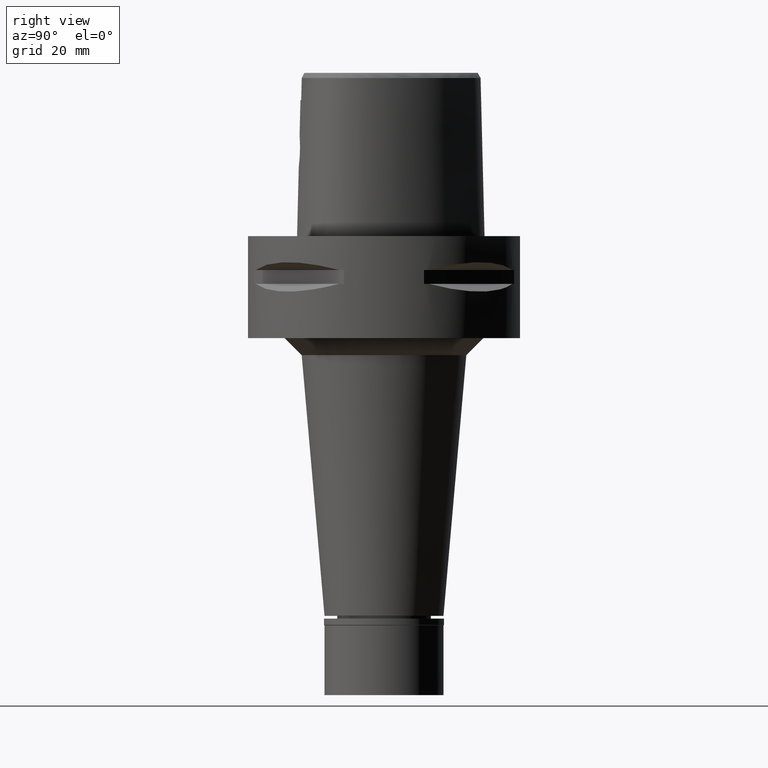
[diagram: clean part render]
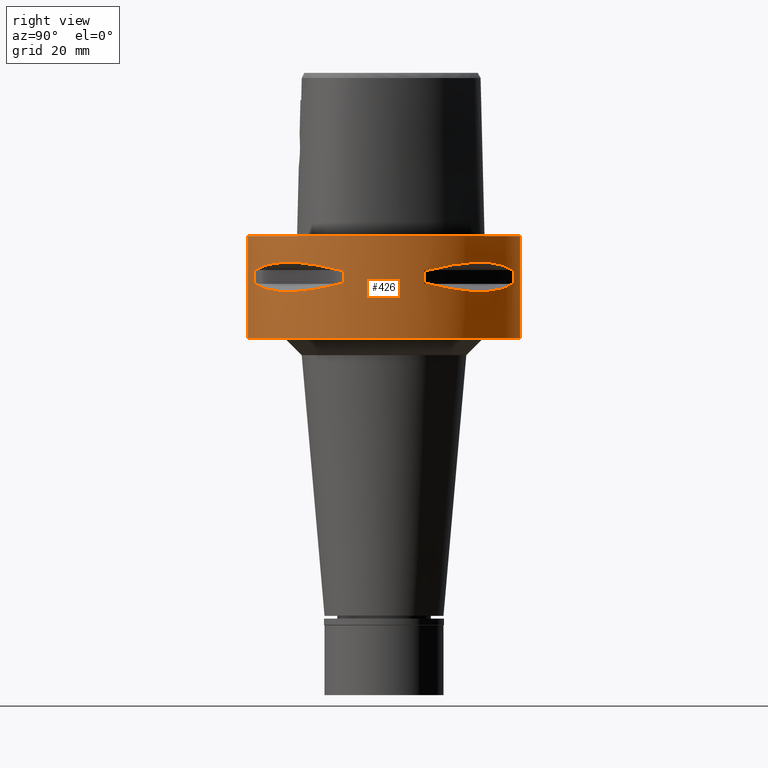
[diagram: same view with one face highlighted and labeled with its STEP entity id]
A machine part, right view. The second image highlights one B-rep face of the part: STEP entity #426.
In plain terms, the highlighted cylindrical surface (partial cylindrical patch) has radius 40 mm, axis along (0, 0, -1).
Its self-contained STEP definition (entity closure, byte-faithful):
#49 = CARTESIAN_POINT ( 'NONE',  ( 23.88355431037091137, -32.22577213857957901, -7.859897272571246596 ) ) ;
#60 = CARTESIAN_POINT ( 'NONE',  ( 22.55421454656803704, 33.03835700910301654, -15.93168855142971374 ) ) ;
#84 = VECTOR ( 'NONE', #145, 1000.000000000000000 ) ;
#109 = CARTESIAN_POINT ( 'NONE',  ( 16.14402792110260521, 36.72682052670324993, -14.82054974552761095 ) ) ;
#118 = CARTESIAN_POINT ( 'NONE',  ( 0.0000000000000000000, 1.303207891312999846E-14, -14.05000000000000071 ) ) ;
#132 = VERTEX_POINT ( 'NONE', #4249 ) ;
#145 = DIRECTION ( 'NONE',  ( 0.0000000000000000000, 0.0000000000000000000, -1.000000000000000000 ) ) ;
#200 = ORIENTED_EDGE ( 'NONE', *, *, #4687, .T. ) ;
#223 = CARTESIAN_POINT ( 'NONE',  ( 0.0000000000000000000, 1.303207891312999846E-14, -9.950000000000001066 ) ) ;
#246 = CIRCLE ( 'NONE', #4909, 39.99999999999997868 ) ;
#281 = CARTESIAN_POINT ( 'NONE',  ( 32.30995221950663421, -23.60097336453835837, -16.06165603927566821 ) ) ;
#287 = DIRECTION ( 'NONE',  ( 0.0000000000000000000, 0.0000000000000000000, 1.000000000000000000 ) ) ;
#299 = DIRECTION ( 'NONE',  ( 0.0000000000000000000, 0.0000000000000000000, -1.000000000000000000 ) ) ;
#304 = LINE ( 'NONE', #1458, #5023 ) ;
#310 = DIRECTION ( 'NONE',  ( 0.0000000000000000000, 0.0000000000000000000, -1.000000000000000000 ) ) ;
#331 = CARTESIAN_POINT ( 'NONE',  ( 0.0000000000000000000, 1.303207891312999846E-14, -9.950000000000001066 ) ) ;
#334 = DIRECTION ( 'NONE',  ( 0.9558028356769561196, 0.2940084000702865574, 0.0000000000000000000 ) ) ;
#364 = CARTESIAN_POINT ( 'NONE',  ( 36.74070924257181758, -16.10442380448733957, -9.189948522868267133 ) ) ;
#368 = VERTEX_POINT ( 'NONE', #1227 ) ;
#426 = ADVANCED_FACE ( 'NONE', ( #2798, #4756, #1199 ), #2775, .T. ) ;
#433 = LINE ( 'NONE', #3978, #2457 ) ;
#453 = CARTESIAN_POINT ( 'NONE',  ( 32.16767032371209467, 23.95303639237203797, -16.14729882780224202 ) ) ;
#459 = CARTESIAN_POINT ( 'NONE',  ( 0.0000000000000000000, 1.303207891312999846E-14, -9.950000000000001066 ) ) ;
#511 = CARTESIAN_POINT ( 'NONE',  ( 0.0000000000000000000, 1.303207891312999846E-14, -14.05000000000000071 ) ) ;
#547 = EDGE_CURVE ( 'NONE', #1777, #3102, #1117, .T. ) ;
#562 = CARTESIAN_POINT ( 'NONE',  ( 37.74622163926999718, 13.23717311056000057, -9.950000000002001244 ) ) ;
#617 = CARTESIAN_POINT ( 'NONE',  ( 35.39137327285502010, -18.89342208874845142, -15.39779115589221625 ) ) ;
#643 = CARTESIAN_POINT ( 'NONE',  ( 23.95303639238279914, -32.16767032370825063, -16.14729882780506287 ) ) ;
#647 = CARTESIAN_POINT ( 'NONE',  ( 0.0000000000000000000, 1.303207891312999846E-14, -9.950000000000001066 ) ) ;
#657 = LINE ( 'NONE', #3836, #952 ) ;
#673 = DIRECTION ( 'NONE',  ( 0.0000000000000000000, 0.0000000000000000000, 1.000000000000000000 ) ) ;
#684 = EDGE_CURVE ( 'NONE', #3268, #5112, #2777, .T. ) ;
#778 = CARTESIAN_POINT ( 'NONE',  ( 18.83173199174709467, -35.41596287855377767, -8.619939612211810598 ) ) ;
#795 = EDGE_CURVE ( 'NONE', #1552, #5105, #657, .T. ) ;
#799 = DIRECTION ( 'NONE',  ( 0.0000000000000000000, 0.0000000000000000000, -1.000000000000000000 ) ) ;
#830 = CARTESIAN_POINT ( 'NONE',  ( 16.10435486228985980, -36.74073341982089147, -9.189966798081965038 ) ) ;
#844 = CARTESIAN_POINT ( 'NONE',  ( 33.75216276490046852, 21.46607685731544990, -15.77886817953061005 ) ) ;
#877 = DIRECTION ( 'NONE',  ( 0.0000000000000000000, -1.000000000000000000, 0.0000000000000000000 ) ) ;
#897 = ORIENTED_EDGE ( 'NONE', *, *, #1636, .T. ) ;
#947 = CIRCLE ( 'NONE', #2159, 39.99999999999999289 ) ;
#948 = CARTESIAN_POINT ( 'NONE',  ( 22.02254759438460141, 33.39247868354773630, -15.85920599531294783 ) ) ;
#950 = ORIENTED_EDGE ( 'NONE', *, *, #1203, .F. ) ;
#952 = VECTOR ( 'NONE', #299, 1000.000000000000000 ) ;
#973 = ORIENTED_EDGE ( 'NONE', *, *, #5151, .F. ) ;
#994 = B_SPLINE_CURVE_WITH_KNOTS ( 'NONE', 3,
 ( #1245, #3308, #4020, #2816, #4900, #1344, #2075, #2918, #1680, #3654, #844, #453, #1705, #4433, #2872, #4509, #60, #948, #2438, #2051, #1654, #3287, #2100, #3239, #109, #2539 ),
 .UNSPECIFIED., .F., .F.,
 ( 4, 1, 1, 1, 1, 1, 1, 2, 2, 2, 1, 1, 1, 1, 1, 1, 2, 2, 4 ),
 ( 0.0000000000000000000, 0.1249999999999938660, 0.1874999999999906741, 0.2187499999999889255, 0.2343749999999879541, 0.2421874999999872879, 0.2460937499999869549, 0.2480468749999869271, 0.2499999999999869271, 0.4999999999999968914, 0.6250000000000018874, 0.6875000000000044409, 0.7187500000000057732, 0.7343750000000064393, 0.7421875000000067724, 0.7460937500000065503, 0.7480468750000062172, 0.7500000000000058842, 1.000000000000000000 ),
 .UNSPECIFIED. ) ;
#1013 = CARTESIAN_POINT ( 'NONE',  ( 13.23717311056000057, -37.74622163926999718, -14.05000000000000071 ) ) ;
#1022 = VERTEX_POINT ( 'NONE', #2769 ) ;
#1049 = VERTEX_POINT ( 'NONE', #3162 ) ;
#1060 = DIRECTION ( 'NONE',  ( 0.0000000000000000000, 0.0000000000000000000, -1.000000000000000000 ) ) ;
#1063 = CARTESIAN_POINT ( 'NONE',  ( 33.39247868354526361, -22.02254759438564591, -15.85920599531236164 ) ) ;
#1065 = VERTEX_POINT ( 'NONE', #3137 ) ;
#1092 = CARTESIAN_POINT ( 'NONE',  ( 33.03835700909839090, -22.55421454657001235, -15.93168855142863904 ) ) ;
#1100 = EDGE_LOOP ( 'NONE', ( #200, #1899, #2011, #950, #1571, #1794, #4390, #4657 ) ) ;
#1117 = CIRCLE ( 'NONE', #4021, 39.99999999999997868 ) ;
#1129 = CARTESIAN_POINT ( 'NONE',  ( 18.83182902082666743, 35.41591128510520292, -8.619912199373711559 ) ) ;
#1199 = FACE_BOUND ( 'NONE', #1100, .T. ) ;
#1203 = EDGE_CURVE ( 'NONE', #1022, #5112, #994, .T. ) ;
#1227 = CARTESIAN_POINT ( 'NONE',  ( 0.0000000000000000000, -40.00000000000000000, -30.00000000000000000 ) ) ;
#1238 = EDGE_LOOP ( 'NONE', ( #3600, #3661, #4398, #2301, #5030, #973, #2464, #1882 ) ) ;
#1245 = CARTESIAN_POINT ( 'NONE',  ( 37.74622163926999718, 13.23717311056000057, -14.05000000000000071 ) ) ;
#1255 = CARTESIAN_POINT ( 'NONE',  ( 37.74622163926999718, -13.23717311056000057, -9.950000000002001244 ) ) ;
#1275 = VERTEX_POINT ( 'NONE', #3623 ) ;
#1279 = EDGE_CURVE ( 'NONE', #3415, #1777, #4280, .T. ) ;
#1344 = CARTESIAN_POINT ( 'NONE',  ( 34.09685321779860345, 20.91613153242115075, -15.69507322892878953 ) ) ;
#1405 = CARTESIAN_POINT ( 'NONE',  ( 38.23211342708000160, 11.76033600280999991, -9.950000000000001066 ) ) ;
#1409 = CARTESIAN_POINT ( 'NONE',  ( 20.91613153241887701, -34.09685321779939926, -15.69507322892818557 ) ) ;
#1418 = VERTEX_POINT ( 'NONE', #562 ) ;
#1419 = EDGE_LOOP ( 'NONE', ( #2274, #4045, #897, #4772 ) ) ;
#1456 = CIRCLE ( 'NONE', #2941, 40.00000000000000000 ) ;
#1458 = CARTESIAN_POINT ( 'NONE',  ( 0.0000000000000000000, -40.00000000000000000, 0.0000000000000000000 ) ) ;
#1500 = AXIS2_PLACEMENT_3D ( 'NONE', #1848, #5076, #2008 ) ;
#1509 = B_SPLINE_CURVE_WITH_KNOTS ( 'NONE', 3,
 ( #3524, #1549, #1932, #3907, #2323, #3126, #5109, #1129, #4289, #2707 ),
 .UNSPECIFIED., .F., .F.,
 ( 4, 2, 2, 2, 4 ),
 ( 0.0000000000000000000, 0.2499999999999997780, 0.4999999999999995559, 0.7499999999999997780, 1.000000000000000000 ),
 .UNSPECIFIED. ) ;
#1549 = CARTESIAN_POINT ( 'NONE',  ( 36.74073341983645236, 16.10435486224558943, -9.189966798093662348 ) ) ;
#1552 = VERTEX_POINT ( 'NONE', #1405 ) ;
#1559 = CARTESIAN_POINT ( 'NONE',  ( 0.0000000000000000000, -40.00000000000000000, 0.0000000000000000000 ) ) ;
#1571 = ORIENTED_EDGE ( 'NONE', *, *, #2795, .T. ) ;
#1602 = VERTEX_POINT ( 'NONE', #2185 ) ;
#1636 = EDGE_CURVE ( 'NONE', #368, #1275, #1456, .T. ) ;
#1654 = CARTESIAN_POINT ( 'NONE',  ( 21.56243030661663695, 33.69065616467183588, -15.79309434609252705 ) ) ;
#1680 = CARTESIAN_POINT ( 'NONE',  ( 33.79139713908593023, 21.40429668490282467, -15.76966389594722528 ) ) ;
#1705 = CARTESIAN_POINT ( 'NONE',  ( 30.34851826270024944, 26.21995747455423853, -16.33009976521772799 ) ) ;
#1713 = EDGE_CURVE ( 'NONE', #3044, #368, #304, .T. ) ;
#1714 = DIRECTION ( 'NONE',  ( 0.0000000000000000000, 0.0000000000000000000, -1.000000000000000000 ) ) ;
#1751 = VERTEX_POINT ( 'NONE', #1812 ) ;
#1777 = VERTEX_POINT ( 'NONE', #3616 ) ;
#1794 = ORIENTED_EDGE ( 'NONE', *, *, #795, .F. ) ;
#1812 = CARTESIAN_POINT ( 'NONE',  ( 11.76033600280999991, 38.23211342708000160, -9.950000000000001066 ) ) ;
#1816 = CARTESIAN_POINT ( 'NONE',  ( 37.74622163926999718, -13.23717311056000057, -14.05000000000000071 ) ) ;
#1848 = CARTESIAN_POINT ( 'NONE',  ( 0.0000000000000000000, 1.303207891312999846E-14, 0.0000000000000000000 ) ) ;
#1850 = CARTESIAN_POINT ( 'NONE',  ( 11.76033600280999991, -38.23211342708000160, -9.950000000000001066 ) ) ;
#1859 = AXIS2_PLACEMENT_3D ( 'NONE', #4686, #310, #4606 ) ;
#1863 = EDGE_CURVE ( 'NONE', #1049, #1275, #433, .T. ) ;
#1882 = ORIENTED_EDGE ( 'NONE', *, *, #1279, .T. ) ;
#1899 = ORIENTED_EDGE ( 'NONE', *, *, #3773, .F. ) ;
#1924 = DIRECTION ( 'NONE',  ( 0.0000000000000000000, 0.0000000000000000000, 1.000000000000000000 ) ) ;
#1927 = DIRECTION ( 'NONE',  ( 0.0000000000000000000, 0.0000000000000000000, 1.000000000000000000 ) ) ;
#1932 = CARTESIAN_POINT ( 'NONE',  ( 35.41596287858687475, 18.83173199168492218, -8.619939612229346793 ) ) ;
#1992 = AXIS2_PLACEMENT_3D ( 'NONE', #118, #1714, #2422 ) ;
#2008 = DIRECTION ( 'NONE',  ( 0.0000000000000000000, 1.000000000000000000, 0.0000000000000000000 ) ) ;
#2011 = ORIENTED_EDGE ( 'NONE', *, *, #684, .T. ) ;
#2051 = CARTESIAN_POINT ( 'NONE',  ( 21.62017158009700069, 33.65365962422837498, -15.80156334789098160 ) ) ;
#2070 = EDGE_CURVE ( 'NONE', #1552, #1418, #4432, .T. ) ;
#2075 = CARTESIAN_POINT ( 'NONE',  ( 33.91944728533341191, 21.20128033779756294, -15.73905907260447101 ) ) ;
#2100 = CARTESIAN_POINT ( 'NONE',  ( 21.50560509406274434, 33.72697758561020720, -15.78472370821746118 ) ) ;
#2147 = EDGE_CURVE ( 'NONE', #132, #4430, #3434, .T. ) ;
#2159 = AXIS2_PLACEMENT_3D ( 'NONE', #331, #1924, #4733 ) ;
#2161 = CARTESIAN_POINT ( 'NONE',  ( 0.0000000000000000000, 1.303207891312999846E-14, -14.05000000000000071 ) ) ;
#2182 = EDGE_CURVE ( 'NONE', #4397, #4430, #4149, .T. ) ;
#2185 = CARTESIAN_POINT ( 'NONE',  ( 13.23717311056000057, 37.74622163926999718, -9.950000000002001244 ) ) ;
#2218 = CARTESIAN_POINT ( 'NONE',  ( 11.76033600280999991, 38.23211342708000160, -14.05000000000000071 ) ) ;
#2238 = CARTESIAN_POINT ( 'NONE',  ( 33.56701934068144766, -21.75464223249341345, -15.82109001420603533 ) ) ;
#2252 = AXIS2_PLACEMENT_3D ( 'NONE', #2161, #4227, #2956 ) ;
#2265 = CARTESIAN_POINT ( 'NONE',  ( 21.34345216682037716, -33.82993376593525170, -15.76055673748744468 ) ) ;
#2274 = ORIENTED_EDGE ( 'NONE', *, *, #3830, .T. ) ;
#2296 = CARTESIAN_POINT ( 'NONE',  ( 33.71529052282339478, -21.52391145898932834, -15.78742602700008568 ) ) ;
#2301 = ORIENTED_EDGE ( 'NONE', *, *, #2182, .F. ) ;
#2319 = CARTESIAN_POINT ( 'NONE',  ( 20.34261333234551472, -34.44518065740425783, -15.60313948593864275 ) ) ;
#2323 = CARTESIAN_POINT ( 'NONE',  ( 30.36058330523851367, 26.20795918968530813, -7.669882118585187314 ) ) ;
#2334 = CIRCLE ( 'NONE', #1500, 40.00000000000000000 ) ;
#2344 = CARTESIAN_POINT ( 'NONE',  ( 11.76033600280999991, 38.23211342708000160, -14.05000000000000071 ) ) ;
#2378 = CARTESIAN_POINT ( 'NONE',  ( 26.20795918965211158, -30.36058330527167115, -7.669882118573492669 ) ) ;
#2422 = DIRECTION ( 'NONE',  ( 0.9436555409818374596, 0.3309293277639132058, 0.0000000000000000000 ) ) ;
#2438 = CARTESIAN_POINT ( 'NONE',  ( 21.75464223249287699, 33.56701934068274795, -15.82109001420633732 ) ) ;
#2457 = VECTOR ( 'NONE', #4758, 1000.000000000000000 ) ;
#2464 = ORIENTED_EDGE ( 'NONE', *, *, #2542, .T. ) ;
#2490 = CARTESIAN_POINT ( 'NONE',  ( 38.23211342708000160, -11.76033600280999991, -14.05000000000000071 ) ) ;
#2520 = DIRECTION ( 'NONE',  ( 0.9436555409818374596, -0.3309293277639132058, 0.0000000000000000000 ) ) ;
#2539 = CARTESIAN_POINT ( 'NONE',  ( 13.23717311056000057, 37.74622163926999718, -14.05000000000000071 ) ) ;
#2542 = EDGE_CURVE ( 'NONE', #4735, #3415, #947, .T. ) ;
#2601 = CARTESIAN_POINT ( 'NONE',  ( 21.40429668490248005, -33.79139713908606524, -15.76966389594713647 ) ) ;
#2606 = LINE ( 'NONE', #2218, #3402 ) ;
#2626 = CARTESIAN_POINT ( 'NONE',  ( 21.20128033779640830, -33.91944728533381692, -15.73905907260415837 ) ) ;
#2649 = CARTESIAN_POINT ( 'NONE',  ( 29.31642813390815050, -27.25214773984377459, -16.33014064577162472 ) ) ;
#2673 = CARTESIAN_POINT ( 'NONE',  ( 33.65365962422774260, -21.62017158009728135, -15.80156334789082528 ) ) ;
#2707 = CARTESIAN_POINT ( 'NONE',  ( 13.23717311056000057, 37.74622163926999718, -9.950000000002001244 ) ) ;
#2755 = CARTESIAN_POINT ( 'NONE',  ( 35.41591128513823605, -18.83182902076454113, -8.619912199391260188 ) ) ;
#2769 = CARTESIAN_POINT ( 'NONE',  ( 37.74622163926999718, 13.23717311056000057, -14.05000000000000071 ) ) ;
#2775 = CYLINDRICAL_SURFACE ( 'NONE', #3611, 40.00000000000000000 ) ;
#2777 = CIRCLE ( 'NONE', #4603, 39.99999999999999289 ) ;
#2795 = EDGE_CURVE ( 'NONE', #1022, #5105, #3732, .T. ) ;
#2798 = FACE_OUTER_BOUND ( 'NONE', #1419, .T. ) ;
#2816 = CARTESIAN_POINT ( 'NONE',  ( 35.11589783530617126, 19.18269457493275354, -15.40342377741110091 ) ) ;
#2872 = CARTESIAN_POINT ( 'NONE',  ( 25.62819065486898396, 30.77249687754148866, -16.26160051743016055 ) ) ;
#2918 = CARTESIAN_POINT ( 'NONE',  ( 33.82993376593505275, 21.34345216682098112, -15.76055673748761166 ) ) ;
#2921 = CARTESIAN_POINT ( 'NONE',  ( 37.74622163926999718, -13.23717311056000057, -14.05000000000000071 ) ) ;
#2941 = AXIS2_PLACEMENT_3D ( 'NONE', #2978, #3764, #4126 ) ;
#2956 = DIRECTION ( 'NONE',  ( 0.3309293277639132058, -0.9436555409818374596, 0.0000000000000000000 ) ) ;
#2978 = CARTESIAN_POINT ( 'NONE',  ( 0.0000000000000000000, 1.303207891312999846E-14, -30.00000000000000000 ) ) ;
#2982 = CARTESIAN_POINT ( 'NONE',  ( 38.23211342708000160, 11.76033600280999991, -14.05000000000000071 ) ) ;
#2984 = CARTESIAN_POINT ( 'NONE',  ( 30.77249687753092289, -25.62819065487347814, -16.26160051742767365 ) ) ;
#3010 = CARTESIAN_POINT ( 'NONE',  ( 33.72697758561029246, -21.50560509406250276, -15.78472370821739901 ) ) ;
#3044 = VERTEX_POINT ( 'NONE', #1559 ) ;
#3060 = CARTESIAN_POINT ( 'NONE',  ( 19.18269457492549179, -35.11589783530871500, -15.40342377740917001 ) ) ;
#3102 = VERTEX_POINT ( 'NONE', #4274 ) ;
#3126 = CARTESIAN_POINT ( 'NONE',  ( 26.20795918968520866, 30.36058330523860960, -7.669863843575448925 ) ) ;
#3137 = CARTESIAN_POINT ( 'NONE',  ( 11.76033600280999991, -38.23211342708000160, -14.05000000000000071 ) ) ;
#3148 = CARTESIAN_POINT ( 'NONE',  ( 30.36058330527161075, -26.20795918965218618, -7.669863843587146235 ) ) ;
#3162 = CARTESIAN_POINT ( 'NONE',  ( 0.0000000000000000000, 40.00000000000000000, 0.0000000000000000000 ) ) ;
#3239 = CARTESIAN_POINT ( 'NONE',  ( 18.89342208871625317, 35.39137327286631063, -15.39779115588368619 ) ) ;
#3268 = VERTEX_POINT ( 'NONE', #2344 ) ;
#3287 = CARTESIAN_POINT ( 'NONE',  ( 21.52391145898924663, 33.71529052282357952, -15.78742602700012831 ) ) ;
#3308 = CARTESIAN_POINT ( 'NONE',  ( 37.23659447744844897, 14.69039122918117357, -14.43521939500984885 ) ) ;
#3402 = VECTOR ( 'NONE', #673, 1000.000000000000000 ) ;
#3415 = VERTEX_POINT ( 'NONE', #3471 ) ;
#3434 = CIRCLE ( 'NONE', #1859, 39.99999999999999289 ) ;
#3471 = CARTESIAN_POINT ( 'NONE',  ( 13.23717311056000057, -37.74622163926999718, -9.950000000002001244 ) ) ;
#3524 = CARTESIAN_POINT ( 'NONE',  ( 37.74622163926999718, 13.23717311056000057, -9.950000000002001244 ) ) ;
#3600 = ORIENTED_EDGE ( 'NONE', *, *, #547, .T. ) ;
#3611 = AXIS2_PLACEMENT_3D ( 'NONE', #4360, #799, #877 ) ;
#3616 = CARTESIAN_POINT ( 'NONE',  ( 37.74622163926999718, -13.23717311056000057, -9.950000000002001244 ) ) ;
#3623 = CARTESIAN_POINT ( 'NONE',  ( 0.0000000000000000000, 40.00000000000000000, -30.00000000000000000 ) ) ;
#3654 = CARTESIAN_POINT ( 'NONE',  ( 33.76566745675005166, 21.44484052678287256, -15.77571175125579828 ) ) ;
#3661 = ORIENTED_EDGE ( 'NONE', *, *, #4465, .F. ) ;
#3687 = DIRECTION ( 'NONE',  ( 0.0000000000000000000, 0.0000000000000000000, -1.000000000000000000 ) ) ;
#3707 = DIRECTION ( 'NONE',  ( 0.0000000000000000000, 0.0000000000000000000, 1.000000000000000000 ) ) ;
#3732 = CIRCLE ( 'NONE', #1992, 39.99999999999997868 ) ;
#3764 = DIRECTION ( 'NONE',  ( 0.0000000000000000000, 0.0000000000000000000, 1.000000000000000000 ) ) ;
#3773 = EDGE_CURVE ( 'NONE', #3268, #1751, #2606, .T. ) ;
#3796 = CARTESIAN_POINT ( 'NONE',  ( 36.72682052669194519, -16.14402792113480345, -14.82054974553614635 ) ) ;
#3818 = CARTESIAN_POINT ( 'NONE',  ( 11.76033600280999991, -38.23211342708000160, -9.950000000000001066 ) ) ;
#3830 = EDGE_CURVE ( 'NONE', #1049, #3044, #2334, .T. ) ;
#3836 = CARTESIAN_POINT ( 'NONE',  ( 38.23211342708000160, 11.76033600280999991, -9.950000000000001066 ) ) ;
#3847 = CARTESIAN_POINT ( 'NONE',  ( 26.21995747456629644, -30.34851826269509800, -16.33009976522055240 ) ) ;
#3907 = CARTESIAN_POINT ( 'NONE',  ( 32.22577213862145840, 23.88355431031446230, -7.859897272588792561 ) ) ;
#3978 = CARTESIAN_POINT ( 'NONE',  ( 0.0000000000000000000, 40.00000000000000000, 0.0000000000000000000 ) ) ;
#4020 = CARTESIAN_POINT ( 'NONE',  ( 36.35358138589326416, 16.81132763100200123, -14.94059947015123058 ) ) ;
#4021 = AXIS2_PLACEMENT_3D ( 'NONE', #459, #4464, #2520 ) ;
#4045 = ORIENTED_EDGE ( 'NONE', *, *, #1713, .T. ) ;
#4048 = CARTESIAN_POINT ( 'NONE',  ( 13.23717311056000057, -37.74622163926999718, -14.05000000000000071 ) ) ;
#4069 = LINE ( 'NONE', #2490, #4745 ) ;
#4093 = EDGE_CURVE ( 'NONE', #4397, #1065, #4231, .T. ) ;
#4111 = CARTESIAN_POINT ( 'NONE',  ( 13.23717311056000057, 37.74622163926999718, -14.05000000000000071 ) ) ;
#4126 = DIRECTION ( 'NONE',  ( 0.0000000000000000000, -1.000000000000000000, 0.0000000000000000000 ) ) ;
#4149 = B_SPLINE_CURVE_WITH_KNOTS ( 'NONE', 3,
 ( #1013, #4630, #5045, #3060, #2319, #1409, #2626, #2265, #2601, #4180, #4656, #643, #3847, #2649, #2984, #281, #1092, #1063, #2238, #2673, #4257, #2296, #3010, #617, #3796, #1816 ),
 .UNSPECIFIED., .F., .F.,
 ( 4, 1, 1, 1, 1, 1, 1, 2, 2, 2, 1, 1, 1, 1, 1, 1, 2, 2, 4 ),
 ( 0.0000000000000000000, 0.1250000000000018319, 0.1875000000000027478, 0.2187500000000032196, 0.2343750000000035805, 0.2421875000000038025, 0.2460937500000040523, 0.2480468750000043576, 0.2500000000000046629, 0.5000000000000000000, 0.6249999999999975575, 0.6874999999999964473, 0.7187499999999961142, 0.7343749999999960032, 0.7421874999999960032, 0.7460937499999957812, 0.7480468749999958922, 0.7499999999999958922, 1.000000000000000000 ),
 .UNSPECIFIED. ) ;
#4180 = CARTESIAN_POINT ( 'NONE',  ( 21.44484052678270913, -33.76566745675011560, -15.77571175125575031 ) ) ;
#4227 = DIRECTION ( 'NONE',  ( 0.0000000000000000000, 0.0000000000000000000, -1.000000000000000000 ) ) ;
#4231 = CIRCLE ( 'NONE', #2252, 39.99999999999997868 ) ;
#4249 = CARTESIAN_POINT ( 'NONE',  ( 38.23211342708000160, -11.76033600280999991, -14.05000000000000071 ) ) ;
#4257 = CARTESIAN_POINT ( 'NONE',  ( 33.69065616467145929, -21.56243030661679327, -15.79309434609244001 ) ) ;
#4274 = CARTESIAN_POINT ( 'NONE',  ( 38.23211342708000160, -11.76033600280999991, -9.950000000000001066 ) ) ;
#4280 = B_SPLINE_CURVE_WITH_KNOTS ( 'NONE', 3,
 ( #4843, #830, #778, #49, #2378, #3148, #4737, #2755, #364, #1255 ),
 .UNSPECIFIED., .F., .F.,
 ( 4, 2, 2, 2, 4 ),
 ( 0.0000000000000000000, 0.2500000000000000000, 0.5000000000000000000, 0.7500000000000000000, 1.000000000000000000 ),
 .UNSPECIFIED. ) ;
#4289 = CARTESIAN_POINT ( 'NONE',  ( 16.10442380453151401, 36.74070924255632775, -9.189948522856571600 ) ) ;
#4360 = CARTESIAN_POINT ( 'NONE',  ( 0.0000000000000000000, 1.303207891312999846E-14, 6.415000000000000036 ) ) ;
#4390 = ORIENTED_EDGE ( 'NONE', *, *, #2070, .T. ) ;
#4397 = VERTEX_POINT ( 'NONE', #4048 ) ;
#4398 = ORIENTED_EDGE ( 'NONE', *, *, #2147, .T. ) ;
#4430 = VERTEX_POINT ( 'NONE', #2921 ) ;
#4432 = CIRCLE ( 'NONE', #5101, 39.99999999999999289 ) ;
#4433 = CARTESIAN_POINT ( 'NONE',  ( 27.25214773984120598, 29.31642813391417590, -16.33014064577303515 ) ) ;
#4464 = DIRECTION ( 'NONE',  ( 0.0000000000000000000, 0.0000000000000000000, 1.000000000000000000 ) ) ;
#4465 = EDGE_CURVE ( 'NONE', #132, #3102, #4069, .T. ) ;
#4509 = CARTESIAN_POINT ( 'NONE',  ( 23.60097336453497618, 32.30995221951452834, -16.06165603927751917 ) ) ;
#4543 = DIRECTION ( 'NONE',  ( 0.2940084000702865574, 0.9558028356769561196, 0.0000000000000000000 ) ) ;
#4550 = LINE ( 'NONE', #3818, #84 ) ;
#4603 = AXIS2_PLACEMENT_3D ( 'NONE', #511, #3687, #4543 ) ;
#4606 = DIRECTION ( 'NONE',  ( 0.9558028356769561196, -0.2940084000702865574, 0.0000000000000000000 ) ) ;
#4610 = DIRECTION ( 'NONE',  ( 0.3309293277639132058, 0.9436555409818374596, 0.0000000000000000000 ) ) ;
#4630 = CARTESIAN_POINT ( 'NONE',  ( 14.69039122917563844, -37.23659447745037454, -14.43521939500837981 ) ) ;
#4656 = CARTESIAN_POINT ( 'NONE',  ( 21.46607685731536819, -33.75216276490051825, -15.77886817953059051 ) ) ;
#4657 = ORIENTED_EDGE ( 'NONE', *, *, #4884, .T. ) ;
#4686 = CARTESIAN_POINT ( 'NONE',  ( 0.0000000000000000000, 1.303207891312999846E-14, -14.05000000000000071 ) ) ;
#4687 = EDGE_CURVE ( 'NONE', #1602, #1751, #246, .T. ) ;
#4733 = DIRECTION ( 'NONE',  ( 0.2940084000702865574, -0.9558028356769561196, 0.0000000000000000000 ) ) ;
#4735 = VERTEX_POINT ( 'NONE', #1850 ) ;
#4737 = CARTESIAN_POINT ( 'NONE',  ( 32.22570670470193477, -23.88364259920623667, -7.859869859750701515 ) ) ;
#4745 = VECTOR ( 'NONE', #3707, 1000.000000000000000 ) ;
#4756 = FACE_BOUND ( 'NONE', #1238, .T. ) ;
#4758 = DIRECTION ( 'NONE',  ( 0.0000000000000000000, 0.0000000000000000000, -1.000000000000000000 ) ) ;
#4772 = ORIENTED_EDGE ( 'NONE', *, *, #1863, .F. ) ;
#4843 = CARTESIAN_POINT ( 'NONE',  ( 13.23717311056000057, -37.74622163926999718, -9.950000000002001244 ) ) ;
#4884 = EDGE_CURVE ( 'NONE', #1418, #1602, #1509, .T. ) ;
#4900 = CARTESIAN_POINT ( 'NONE',  ( 34.44518065740276569, 20.34261333234974245, -15.60313948593977074 ) ) ;
#4909 = AXIS2_PLACEMENT_3D ( 'NONE', #647, #287, #4610 ) ;
#5023 = VECTOR ( 'NONE', #1060, 1000.000000000000000 ) ;
#5030 = ORIENTED_EDGE ( 'NONE', *, *, #4093, .T. ) ;
#5045 = CARTESIAN_POINT ( 'NONE',  ( 16.81132763099230587, -36.35358138589664634, -14.94059947014864775 ) ) ;
#5076 = DIRECTION ( 'NONE',  ( 0.0000000000000000000, 0.0000000000000000000, -1.000000000000000000 ) ) ;
#5101 = AXIS2_PLACEMENT_3D ( 'NONE', #223, #1927, #334 ) ;
#5105 = VERTEX_POINT ( 'NONE', #2982 ) ;
#5109 = CARTESIAN_POINT ( 'NONE',  ( 23.88364259926272481, 32.22570670466008380, -7.859869859733159991 ) ) ;
#5112 = VERTEX_POINT ( 'NONE', #4111 ) ;
#5151 = EDGE_CURVE ( 'NONE', #4735, #1065, #4550, .T. ) ;